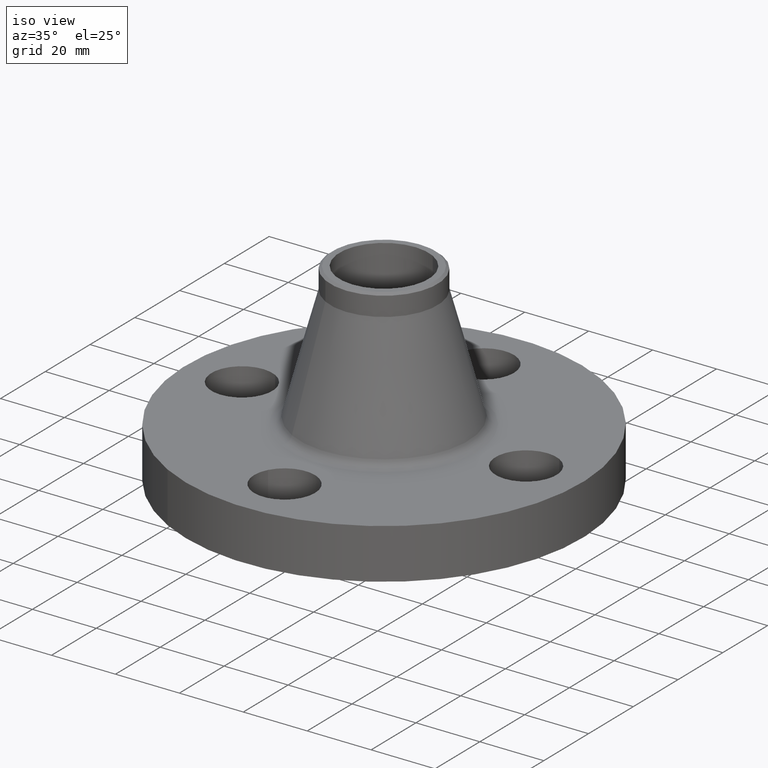
[diagram: clean part render]
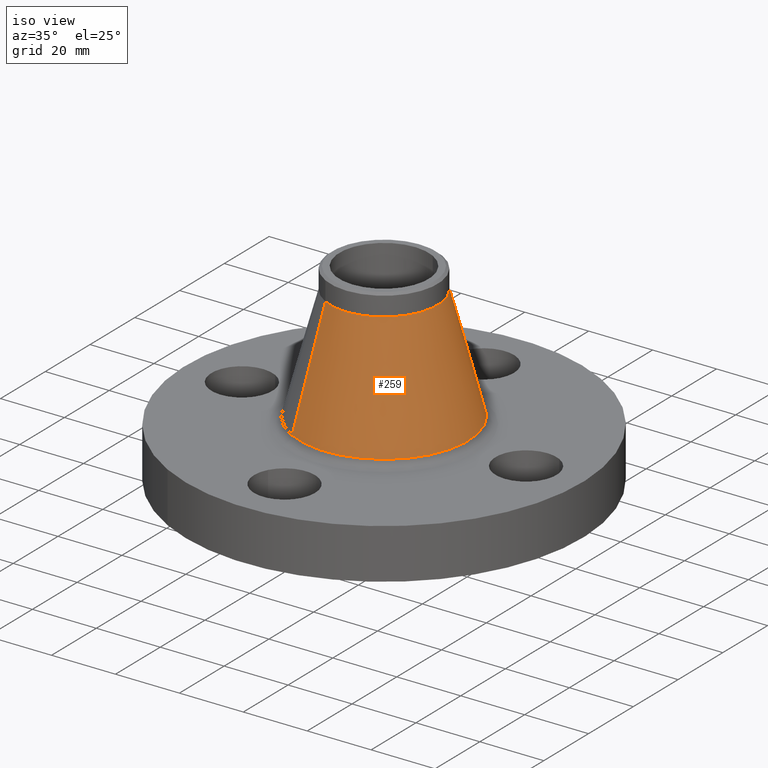
[diagram: same view with one face highlighted and labeled with its STEP entity id]
A machine part, iso view. The second image highlights one B-rep face of the part: STEP entity #259.
In plain terms, the highlighted conical surface has half-angle 14.944 deg.
Its self-contained STEP definition (entity closure, byte-faithful):
#195=AXIS2_PLACEMENT_3D('Circle Axis2P3D',#193,#194,$) ;
#232=AXIS2_PLACEMENT_3D('Cone Axis2P3D',#229,#230,#231) ;
#243=AXIS2_PLACEMENT_3D('Circle Axis2P3D',#241,#242,$) ;
#190=CARTESIAN_POINT('Vertex',(0.49679544257,0.909377957827,0.70905432688)) ;
#193=CARTESIAN_POINT('Axis2P3D Location',(0.,0.,0.70905432688)) ;
#197=CARTESIAN_POINT('Vertex',(-0.49679544257,-0.909377957827,0.70905432688)) ;
#229=CARTESIAN_POINT('Axis2P3D Location',(0.,0.,2.11864201628)) ;
#234=CARTESIAN_POINT('Line Origine',(0.406608149025,0.744291224338,1.41384817158)) ;
#238=CARTESIAN_POINT('Vertex',(0.31642085548,0.57920449085,2.11864201628)) ;
#241=CARTESIAN_POINT('Axis2P3D Location',(0.,0.,2.11864201628)) ;
#245=CARTESIAN_POINT('Vertex',(-0.31642085548,-0.57920449085,2.11864201628)) ;
#248=CARTESIAN_POINT('Line Origine',(-0.406608149025,-0.744291224338,1.41384817158)) ;
#194=DIRECTION('Axis2P3D Direction',(0.,0.,-0.0393700787402)) ;
#230=DIRECTION('Axis2P3D Direction',(0.,0.,-0.0393700787402)) ;
#231=DIRECTION('Axis2P3D XDirection',(-0.0188750212049,-0.0345504945626,0.)) ;
#235=DIRECTION('Vector Direction',(0.00486750197,0.00890990259149,-0.0380384563355)) ;
#242=DIRECTION('Axis2P3D Direction',(0.,0.,-0.0393700787402)) ;
#249=DIRECTION('Vector Direction',(-0.00486750197,-0.00890990259149,-0.0380384563355)) ;
#236=VECTOR('Line Direction',#235,0.0393700787402) ;
#250=VECTOR('Line Direction',#249,0.0393700787402) ;
#254=ORIENTED_EDGE('',*,*,#199,.F.) ;
#255=ORIENTED_EDGE('',*,*,#240,.T.) ;
#256=ORIENTED_EDGE('',*,*,#247,.T.) ;
#257=ORIENTED_EDGE('',*,*,#252,.F.) ;
#259=ADVANCED_FACE('PartBody',(#258),#233,.T.) ;
#196=CIRCLE('generated circle',#195,1.03623066059) ;
#244=CIRCLE('generated circle',#243,0.660000000003) ;
#233=CONICAL_SURFACE('Cone',#232,0.660000000003,0.2608279739) ;
#199=EDGE_CURVE('',#191,#198,#196,.T.) ;
#240=EDGE_CURVE('',#191,#239,#237,.F.) ;
#247=EDGE_CURVE('',#239,#246,#244,.T.) ;
#252=EDGE_CURVE('',#198,#246,#251,.F.) ;
#253=EDGE_LOOP('',(#254,#255,#256,#257)) ;
#258=FACE_OUTER_BOUND('',#253,.T.) ;
#237=LINE('Line',#234,#236) ;
#251=LINE('Line',#248,#250) ;
#191=VERTEX_POINT('',#190) ;
#198=VERTEX_POINT('',#197) ;
#239=VERTEX_POINT('',#238) ;
#246=VERTEX_POINT('',#245) ;